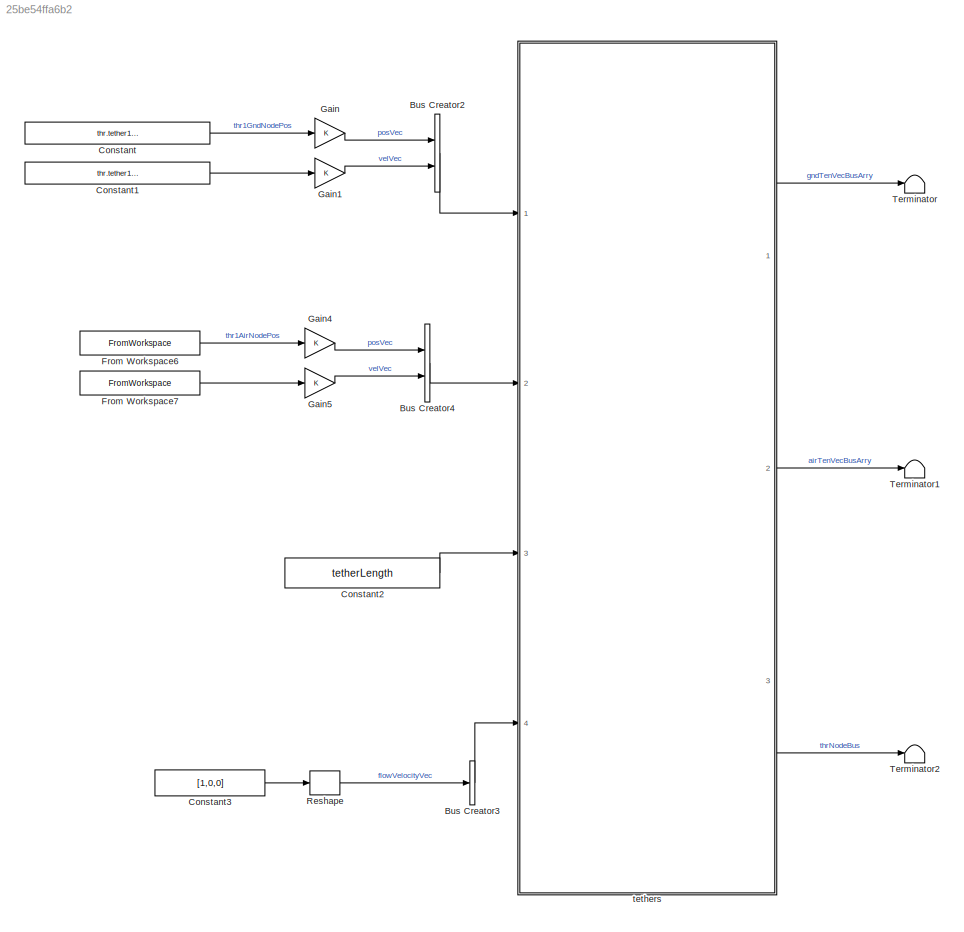
MODEL slx_25be54ffa6b2
KIND model
CONFIG AbsTol = auto
CONFIG EnableMultiTasking = off
CONFIG FixedStep = .1
CONFIG MaxStep = auto
CONFIG MinStep = auto
CONFIG RelTol = 1e-3
CONFIG SampleTimeConstraint = Unconstrained
CONFIG SolverName = VariableStepAuto
CONFIG StartTime = 0.0
CONFIG StopTime = duration_s
BLOCK [BusCreator] Bus Creator2
  DisplayOption = bar
  InheritFromInputs = on
  Inputs = 2
  NonVirtualBus = on
  OutDataTypeStr = Bus: thrAttachPtKinematicsBus
  Ports = [2, 1]
BLOCK [BusCreator] Bus Creator3
  DisplayOption = bar
  InheritFromInputs = on
  Inputs = 1
  OutDataTypeStr = Bus:envBus
  Ports = [1, 1]
BLOCK [BusCreator] Bus Creator4
  DisplayOption = bar
  InheritFromInputs = on
  Inputs = 2
  NonVirtualBus = on
  OutDataTypeStr = Bus: thrAttachPtKinematicsBus
  Ports = [2, 1]
BLOCK [Constant] Constant
  Value = thr.tether1.initGndNodePos.Value
BLOCK [Constant] Constant1
  Value = thr.tether1.initGndNodeVel.Value
BLOCK [Constant] Constant2
  Value = tetherLength
BLOCK [Constant] Constant3
  Value = [1,0,0]
BLOCK [FromWorkspace] From Workspace6
  VariableName = endNodePos
BLOCK [FromWorkspace] From Workspace7
  VariableName = endNodeVel
BLOCK [Gain] Gain
BLOCK [Gain] Gain1
BLOCK [Gain] Gain4
BLOCK [Gain] Gain5
BLOCK [Reshape] Reshape
  OutputDimensionality = Column vector (2-D)
  Ports = [1, 1]
BLOCK [Terminator] Terminator
BLOCK [Terminator] Terminator1
BLOCK [Terminator] Terminator2
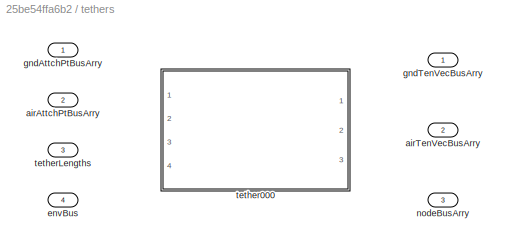
BLOCK [SubSystem] tethers
  AncestorBlock = tethers_cl/tethers
  InitFcn = initializeVariantsFromBlock(gcb)
  LoadFcn = initializeVariantsFromBlock(gcb)
  Ports = [4, 3]
  PreSaveFcn = initializeVariantsFromBlock(gcb)
  RequestExecContextInheritance = off
  StartFcn = initializeVariantsFromBlock(gcb)
  Variant = on
BLOCK [Inport] tethers/airAttchPtBusArry
  Port = 2
BLOCK [Outport] tethers/airTenVecBusArry
  Port = 2
  VectorParamsAs1DForOutWhenUnconnected = off
BLOCK [Inport] tethers/envBus
  OutDataTypeStr = Bus: envBus
  Port = 4
BLOCK [Inport] tethers/gndAttchPtBusArry
BLOCK [Outport] tethers/gndTenVecBusArry
  VectorParamsAs1DForOutWhenUnconnected = off
BLOCK [Outport] tethers/nodeBusArry
  Port = 3
  VectorParamsAs1DForOutWhenUnconnected = off
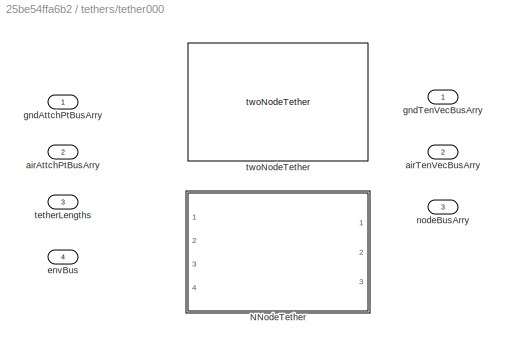
BLOCK [SubSystem] tethers/tether000
  AncestorBlock = tether000_cl/tether000
  InitFcn = tether000_init
  Ports = [4, 3]
  RequestExecContextInheritance = off
  Variant = on
  VariantControl = VSS_tethers_tether000
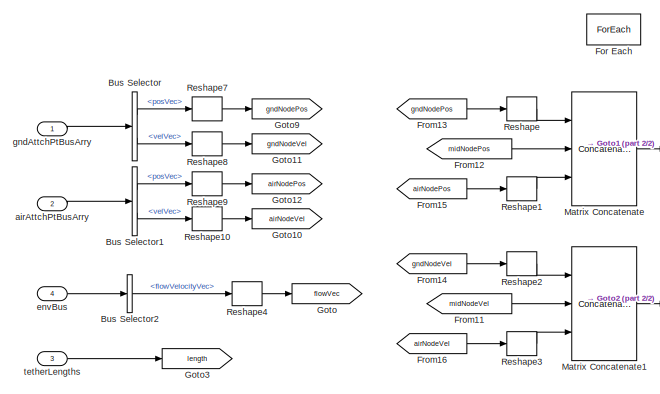
[diagram: tethers/tether000/NNodeTether - part 1/2, middle left region]
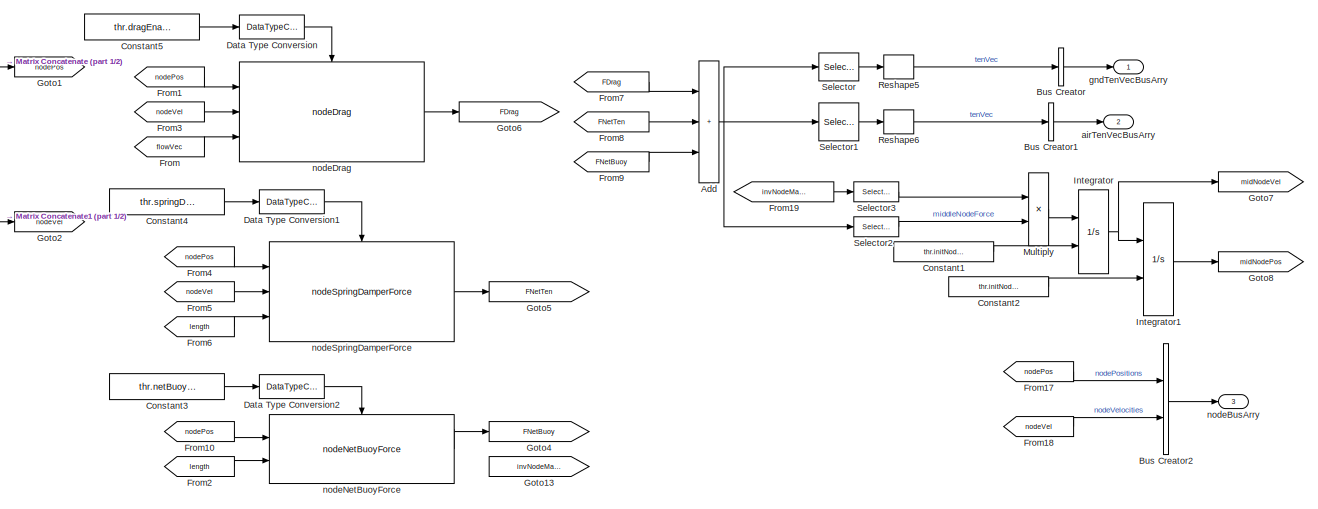
[diagram: tethers/tether000/NNodeTether - part 2/2, center side, full height]
BLOCK [SubSystem] tethers/tether000/NNodeTether
  AncestorBlock = NNodeTether_cl/NNodeTether/NNodeTether
  Ports = [4, 3]
  RequestExecContextInheritance = off
  VariantControl = numNodes~=2
BLOCK [Sum] tethers/tether000/NNodeTether/Add
  IconShape = rectangular
  Inputs = 3
  Ports = [3, 1]
BLOCK [BusCreator] tethers/tether000/NNodeTether/Bus Creator
  DisplayOption = bar
  InheritFromInputs = on
  Inputs = 1
  NonVirtualBus = on
  OutDataTypeStr = Bus: thrTenVecBus
  Ports = [1, 1]
BLOCK [BusCreator] tethers/tether000/NNodeTether/Bus Creator1
  DisplayOption = bar
  InheritFromInputs = on
  Inputs = 1
  NonVirtualBus = on
  OutDataTypeStr = Bus: thrTenVecBus
  Ports = [1, 1]
BLOCK [BusCreator] tethers/tether000/NNodeTether/Bus Creator2
  DisplayOption = bar
  InheritFromInputs = on
  Inputs = 2
  NonVirtualBus = on
  OutDataTypeStr = Bus: thrNodeBus
  Ports = [2, 1]
BLOCK [BusSelector] tethers/tether000/NNodeTether/Bus Selector
  OutputSignals = posVec,velVec
  Ports = [1, 2]
BLOCK [BusSelector] tethers/tether000/NNodeTether/Bus Selector1
  OutputSignals = posVec,velVec
  Ports = [1, 2]
BLOCK [BusSelector] tethers/tether000/NNodeTether/Bus Selector2
  OutputSignals = flowVelocityVec
  Ports = [1, 1]
BLOCK [Constant] tethers/tether000/NNodeTether/Constant1
  Value = thr.initNodeVel
BLOCK [Constant] tethers/tether000/NNodeTether/Constant2
  Value = thr.initNodePos
BLOCK [Constant] tethers/tether000/NNodeTether/Constant3
  Value = thr.netBuoyEnable
BLOCK [Constant] tethers/tether000/NNodeTether/Constant4
  Value = thr.springDamperEnable
BLOCK [Constant] tethers/tether000/NNodeTether/Constant5
  Value = thr.dragEnable
BLOCK [DataTypeConversion] tethers/tether000/NNodeTether/Data Type Conversion
  OutDataTypeStr = boolean
  RndMeth = Floor
  SaturateOnIntegerOverflow = off
BLOCK [DataTypeConversion] tethers/tether000/NNodeTether/Data Type Conversion1
  OutDataTypeStr = boolean
  RndMeth = Floor
  SaturateOnIntegerOverflow = off
BLOCK [DataTypeConversion] tethers/tether000/NNodeTether/Data Type Conversion2
  OutDataTypeStr = boolean
  RndMeth = Floor
  SaturateOnIntegerOverflow = off
BLOCK [ForEach] tethers/tether000/NNodeTether/For Each
  DisableCoverage = on
  IterateSubsysMaskParameter = on,off,off
  Ports = []
  SubsysMaskParameterIterationDimension = 2,1,1
  SubsysMaskParameterIterationStepSize = 1,1,1
BLOCK [From] tethers/tether000/NNodeTether/From
  GotoTag = flowVec
BLOCK [From] tethers/tether000/NNodeTether/From1
  GotoTag = nodePos
BLOCK [From] tethers/tether000/NNodeTether/From10
  GotoTag = nodePos
BLOCK [From] tethers/tether000/NNodeTether/From11
  GotoTag = midNodeVel
BLOCK [From] tethers/tether000/NNodeTether/From12
  GotoTag = midNodePos
BLOCK [From] tethers/tether000/NNodeTether/From13
  GotoTag = gndNodePos
BLOCK [From] tethers/tether000/NNodeTether/From14
  GotoTag = gndNodeVel
BLOCK [From] tethers/tether000/NNodeTether/From15
  GotoTag = airNodePos
BLOCK [From] tethers/tether000/NNodeTether/From16
  GotoTag = airNodeVel
BLOCK [From] tethers/tether000/NNodeTether/From17
  GotoTag = nodePos
BLOCK [From] tethers/tether000/NNodeTether/From18
  GotoTag = nodeVel
BLOCK [From] tethers/tether000/NNodeTether/From19
  GotoTag = invNodeMasses
BLOCK [From] tethers/tether000/NNodeTether/From2
  GotoTag = length
BLOCK [From] tethers/tether000/NNodeTether/From3
  GotoTag = nodeVel
BLOCK [From] tethers/tether000/NNodeTether/From4
  GotoTag = nodePos
BLOCK [From] tethers/tether000/NNodeTether/From5
  GotoTag = nodeVel
BLOCK [From] tethers/tether000/NNodeTether/From6
  GotoTag = length
BLOCK [From] tethers/tether000/NNodeTether/From7
  GotoTag = FDrag
BLOCK [From] tethers/tether000/NNodeTether/From8
  GotoTag = FNetTen
BLOCK [From] tethers/tether000/NNodeTether/From9
  GotoTag = FNetBuoy
BLOCK [Goto] tethers/tether000/NNodeTether/Goto
  GotoTag = flowVec
BLOCK [Goto] tethers/tether000/NNodeTether/Goto1
  GotoTag = nodePos
BLOCK [Goto] tethers/tether000/NNodeTether/Goto10
  GotoTag = airNodeVel
BLOCK [Goto] tethers/tether000/NNodeTether/Goto11
  GotoTag = gndNodeVel
BLOCK [Goto] tethers/tether000/NNodeTether/Goto12
  GotoTag = airNodePos
BLOCK [Goto] tethers/tether000/NNodeTether/Goto13
  GotoTag = invNodeMasses
BLOCK [Goto] tethers/tether000/NNodeTether/Goto2
  GotoTag = nodeVel
BLOCK [Goto] tethers/tether000/NNodeTether/Goto3
  GotoTag = length
BLOCK [Goto] tethers/tether000/NNodeTether/Goto4
  GotoTag = FNetBuoy
BLOCK [Goto] tethers/tether000/NNodeTether/Goto5
  GotoTag = FNetTen
BLOCK [Goto] tethers/tether000/NNodeTether/Goto6
  GotoTag = FDrag
BLOCK [Goto] tethers/tether000/NNodeTether/Goto7
  GotoTag = midNodeVel
BLOCK [Goto] tethers/tether000/NNodeTether/Goto8
  GotoTag = midNodePos
BLOCK [Goto] tethers/tether000/NNodeTether/Goto9
  GotoTag = gndNodePos
BLOCK [Integrator] tethers/tether000/NNodeTether/Integrator
  InitialConditionSource = external
  Ports = [2, 1]
BLOCK [Integrator] tethers/tether000/NNodeTether/Integrator1
  InitialConditionSource = external
  Ports = [2, 1]
BLOCK [Concatenate] tethers/tether000/NNodeTether/Matrix Concatenate
  ConcatenateDimension = 2
  Mode = Multidimensional array
  NumInputs = 3
  Ports = [3, 1]
BLOCK [Concatenate] tethers/tether000/NNodeTether/Matrix Concatenate1
  ConcatenateDimension = 2
  Mode = Multidimensional array
  NumInputs = 3
  Ports = [3, 1]
BLOCK [Product] tethers/tether000/NNodeTether/Multiply
  Ports = [2, 1]
BLOCK [Reshape] tethers/tether000/NNodeTether/Reshape
  OutputDimensionality = Column vector (2-D)
  Ports = [1, 1]
BLOCK [Reshape] tethers/tether000/NNodeTether/Reshape1
  OutputDimensionality = Column vector (2-D)
  Ports = [1, 1]
BLOCK [Reshape] tethers/tether000/NNodeTether/Reshape10
  OutputDimensionality = Column vector (2-D)
  Ports = [1, 1]
BLOCK [Reshape] tethers/tether000/NNodeTether/Reshape2
  OutputDimensionality = Column vector (2-D)
  Ports = [1, 1]
BLOCK [Reshape] tethers/tether000/NNodeTether/Reshape3
  OutputDimensionality = Column vector (2-D)
  Ports = [1, 1]
BLOCK [Reshape] tethers/tether000/NNodeTether/Reshape4
  OutputDimensionality = Column vector (2-D)
  Ports = [1, 1]
BLOCK [Reshape] tethers/tether000/NNodeTether/Reshape5
  OutputDimensionality = Column vector (2-D)
  Ports = [1, 1]
BLOCK [Reshape] tethers/tether000/NNodeTether/Reshape6
  OutputDimensionality = Column vector (2-D)
  Ports = [1, 1]
BLOCK [Reshape] tethers/tether000/NNodeTether/Reshape7
  OutputDimensionality = Column vector (2-D)
  Ports = [1, 1]
BLOCK [Reshape] tethers/tether000/NNodeTether/Reshape8
  OutputDimensionality = Column vector (2-D)
  Ports = [1, 1]
BLOCK [Reshape] tethers/tether000/NNodeTether/Reshape9
  OutputDimensionality = Column vector (2-D)
  Ports = [1, 1]
BLOCK [Selector] tethers/tether000/NNodeTether/Selector
  IndexOptions = Select all,Index vector (dialog)
  Indices = [1 3],1
  InputPortWidth = 3
  NumberOfDimensions = 2
  OutputSizes = 1,1
  Ports = [1, 1]
BLOCK [Selector] tethers/tether000/NNodeTether/Selector1
  IndexOptions = Select all,Starting index (dialog)
  Indices = [1 3],numNodes
  InputPortWidth = 3
  NumberOfDimensions = 2
  OutputSizes = 1,1
  Ports = [1, 1]
BLOCK [Selector] tethers/tether000/NNodeTether/Selector2
  IndexOptions = Select all,Index vector (dialog)
  Indices = [1 3],2:numNodes-1
  InputPortWidth = 3
  NumberOfDimensions = 2
  OutputSizes = 1,1
  Ports = [1, 1]
BLOCK [Selector] tethers/tether000/NNodeTether/Selector3
  IndexOptions = Select all,Index vector (dialog)
  Indices = [1 3],2:numNodes-1
  InputPortWidth = 3
  NumberOfDimensions = 2
  OutputSizes = 1,1
  Ports = [1, 1]
BLOCK [Inport] tethers/tether000/NNodeTether/airAttchPtBusArry
  OutDataTypeStr = Bus: thrAttachPtKinematicsBus
  Partition = on
  PartitionDimension = 1
  PartitionOffset = 0
  PartitionWidth = 1
  Port = 2
BLOCK [Outport] tethers/tether000/NNodeTether/airTenVecBusArry
  ConcatenationDimension = 1
  Port = 2
  VectorParamsAs1DForOutWhenUnconnected = off
BLOCK [Inport] tethers/tether000/NNodeTether/envBus
  OutDataTypeStr = Bus: envBus
  Port = 4
BLOCK [Inport] tethers/tether000/NNodeTether/gndAttchPtBusArry
  OutDataTypeStr = Bus: thrAttachPtKinematicsBus
  Partition = on
  PartitionDimension = 1
  PartitionOffset = 0
  PartitionWidth = 1
BLOCK [Outport] tethers/tether000/NNodeTether/gndTenVecBusArry
  ConcatenationDimension = 1
  VectorParamsAs1DForOutWhenUnconnected = off
BLOCK [Outport] tethers/tether000/NNodeTether/nodeBusArry
  ConcatenationDimension = 1
  Port = 3
  VectorParamsAs1DForOutWhenUnconnected = off
BLOCK [Reference] tethers/tether000/NNodeTether/nodeDrag  REF=nodeDragForce_ul/nodeDrag
  Ports = [3, 1, 1]
  SourceBlock = nodeDragForce_ul/nodeDrag
BLOCK [Reference] tethers/tether000/NNodeTether/nodeNetBuoyForce  REF=nodeNetBuoyForce_ul/nodeNetBuoyForce
  Ports = [2, 1, 1]
  SourceBlock = nodeNetBuoyForce_ul/nodeNetBuoyForce
BLOCK [Reference] tethers/tether000/NNodeTether/nodeSpringDamperForce  REF=nodeSpringDamperForce_ul/nodeSpringDamperForce
  Ports = [3, 1, 1]
  SourceBlock = nodeSpringDamperForce_ul/nodeSpringDamperForce
BLOCK [Inport] tethers/tether000/NNodeTether/tetherLengths
  Partition = on
  PartitionDimension = 1
  PartitionOffset = 0
  PartitionWidth = 1
  Port = 3
BLOCK [Inport] tethers/tether000/airAttchPtBusArry
  OutDataTypeStr = Bus: thrAttachPtKinematicsBus
  Port = 2
BLOCK [Outport] tethers/tether000/airTenVecBusArry
  Port = 2
  VectorParamsAs1DForOutWhenUnconnected = off
BLOCK [Inport] tethers/tether000/envBus
  OutDataTypeStr = Bus: envBus
  Port = 4
BLOCK [Inport] tethers/tether000/gndAttchPtBusArry
  OutDataTypeStr = Bus: thrAttachPtKinematicsBus
BLOCK [Outport] tethers/tether000/gndTenVecBusArry
  VectorParamsAs1DForOutWhenUnconnected = off
BLOCK [Outport] tethers/tether000/nodeBusArry
  Port = 3
  VectorParamsAs1DForOutWhenUnconnected = off
BLOCK [Inport] tethers/tether000/tetherLengths
  Port = 3
BLOCK [Reference] tethers/tether000/twoNodeTether  REF=twoNodeTether_cl/twoNodeTether
  Ports = [5, 6]
  SourceBlock = twoNodeTether_cl/twoNodeTether
BLOCK [Inport] tethers/tetherLengths
  Port = 3
LINE Bus Creator2:1 -> tethers:1
LINE Bus Creator3:1 -> tethers:4
LINE Bus Creator4:1 -> tethers:2
LINE Constant1:1 -> Gain1:1
LINE Constant2:1 -> tethers:3
LINE Constant3:1 -> Reshape:1
LINE Constant:1 -> Gain:1
LINE From Workspace6:1 -> Gain4:1
LINE From Workspace7:1 -> Gain5:1
LINE Gain1:1 -> Bus Creator2:2
LINE Gain4:1 -> Bus Creator4:1
LINE Gain5:1 -> Bus Creator4:2
LINE Gain:1 -> Bus Creator2:1
LINE Reshape:1 -> Bus Creator3:1
LINE tethers:1 -> Terminator:1
LINE tethers:2 -> Terminator1:1
LINE tethers:3 -> Terminator2:1
